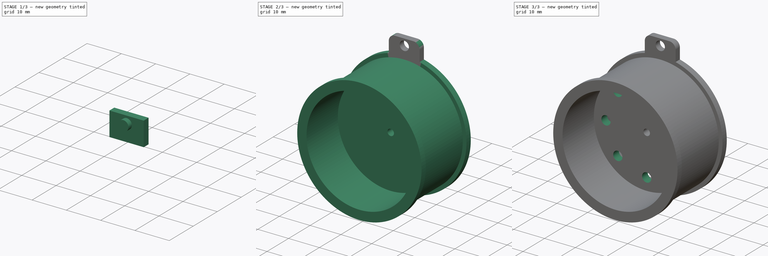
[diagram: build sequence overview — one tinted view per stage of 3, left to right]
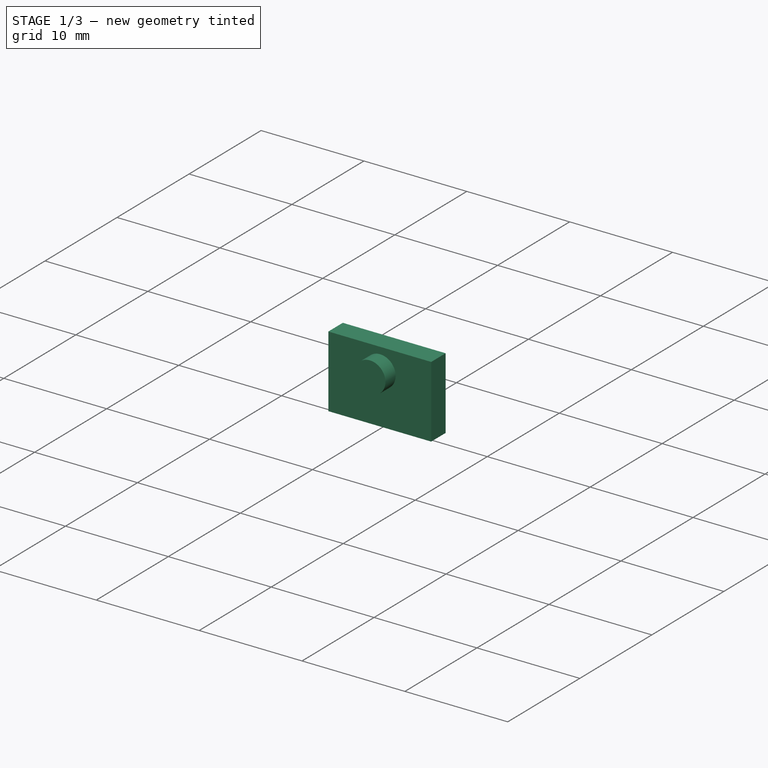
[diagram: stage 1 of 3 — iso view after this stage's code; geometry added in this stage tinted green]
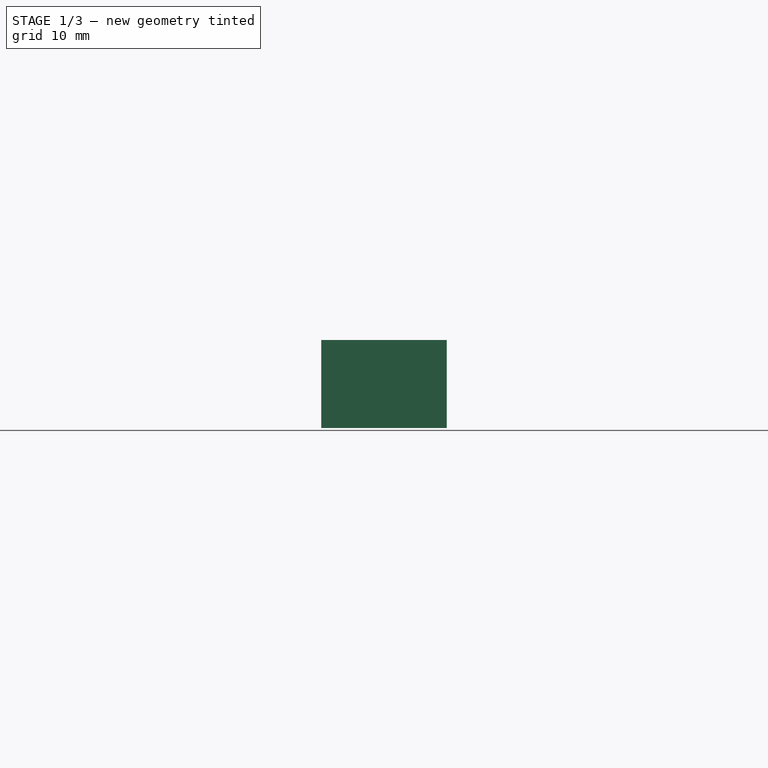
[diagram: stage 1 of 3 — front view after this stage's code; geometry added in this stage tinted green]
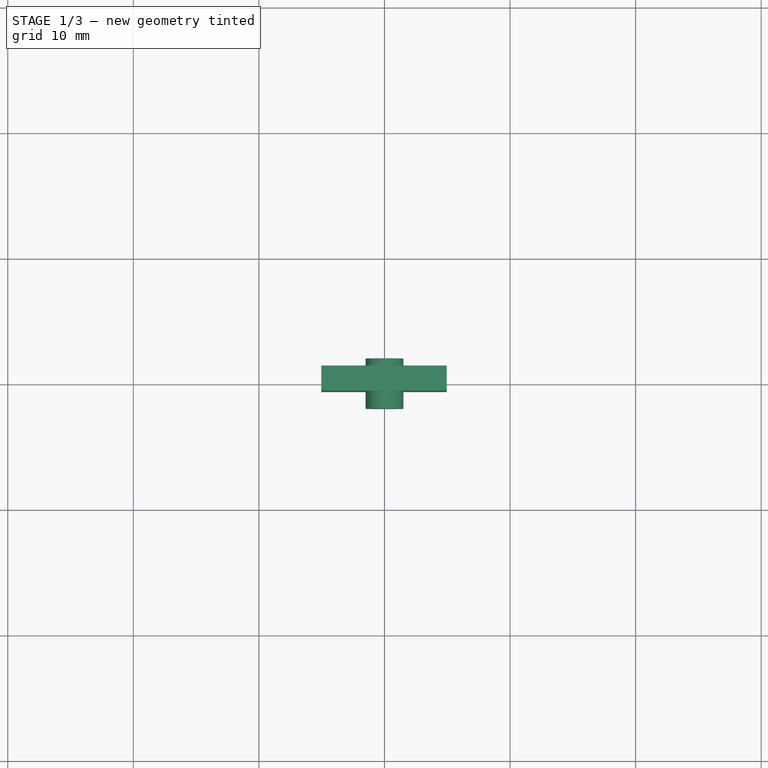
[diagram: stage 1 of 3 — top view after this stage's code; geometry added in this stage tinted green]
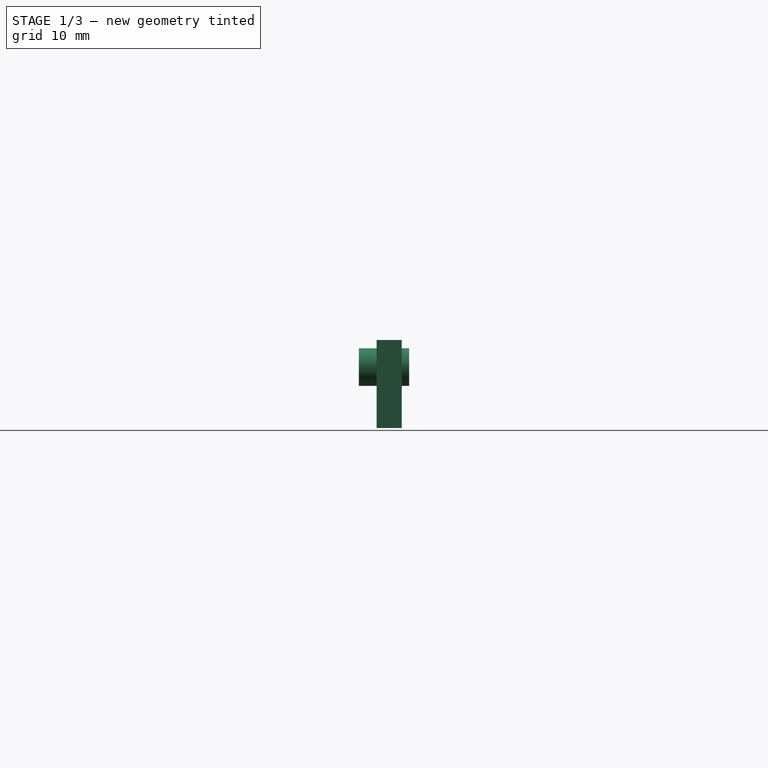
[diagram: stage 1 of 3 — right view after this stage's code; geometry added in this stage tinted green]
FCSTD DOCUMENT  (FreeCAD 0.15R4671 (Git))
Label: llavero-llanta-camion
License: All rights reserved
LicenseURL: http://es.wikipedia.org/wiki/Todos_los_derechos_reservados
objects: Sketcher::SketchObject×2, PartDesign::Revolution×1, PartDesign::Pocket×1, Part::Box×1, Part::Cylinder×1, Part::Cut×1, Part::Fillet×1, Part::MultiFuse×1, Part::Feature×1
note: 12 computed .brp shape members not serialized (recipe doc carries the construction recipe); baked Part::Feature solids carry a one-line shape summary decoded from their .brp

FEATURE [Part::Box] Box  label="Cubo"
  Height = 7
  Length = 10
  Placement = pos=(-5.0381,9.4144,18.151) rot=(0,0,1;0rad)
  Width = 2
FEATURE [Part::Cylinder] Cylinder  label="Cilindro"
  Angle = 360
  Height = 4
  Placement = pos=(0,12,23) rot=(1,0,0;1.5708rad)
  Radius = 1.5
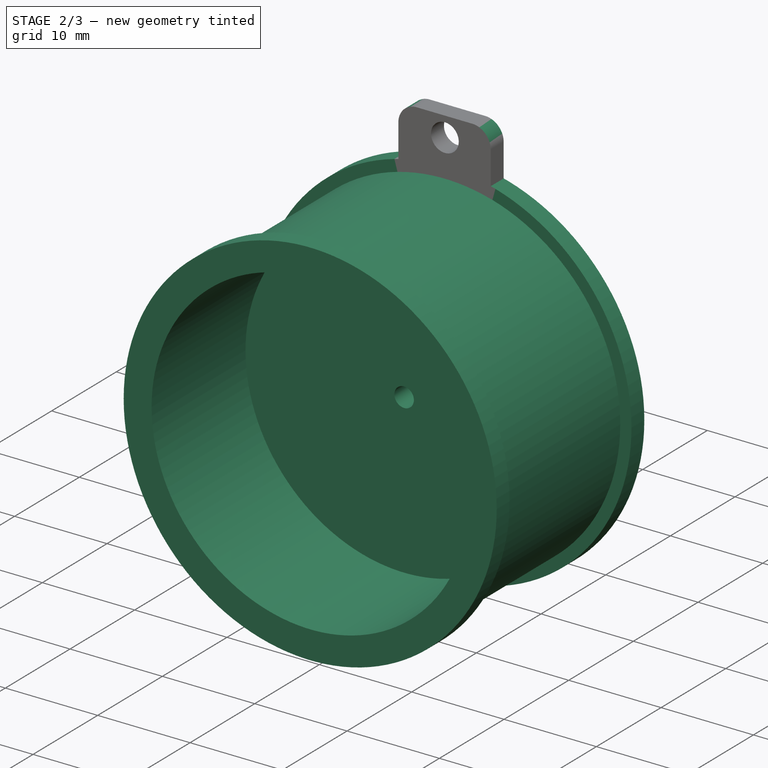
[diagram: stage 2 of 3 — iso view after this stage's code; geometry added in this stage tinted green]
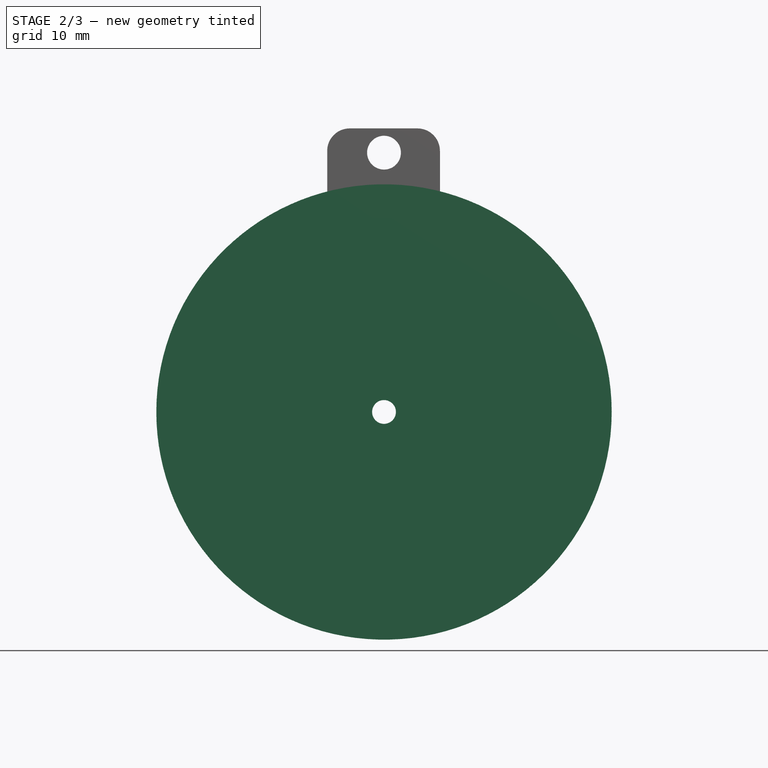
[diagram: stage 2 of 3 — front view after this stage's code; geometry added in this stage tinted green]
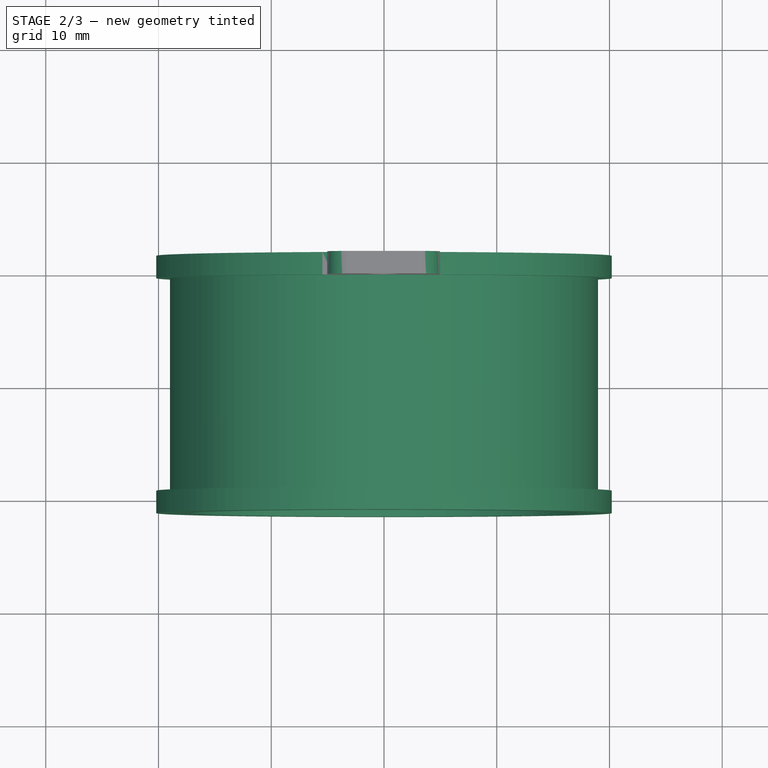
[diagram: stage 2 of 3 — top view after this stage's code; geometry added in this stage tinted green]
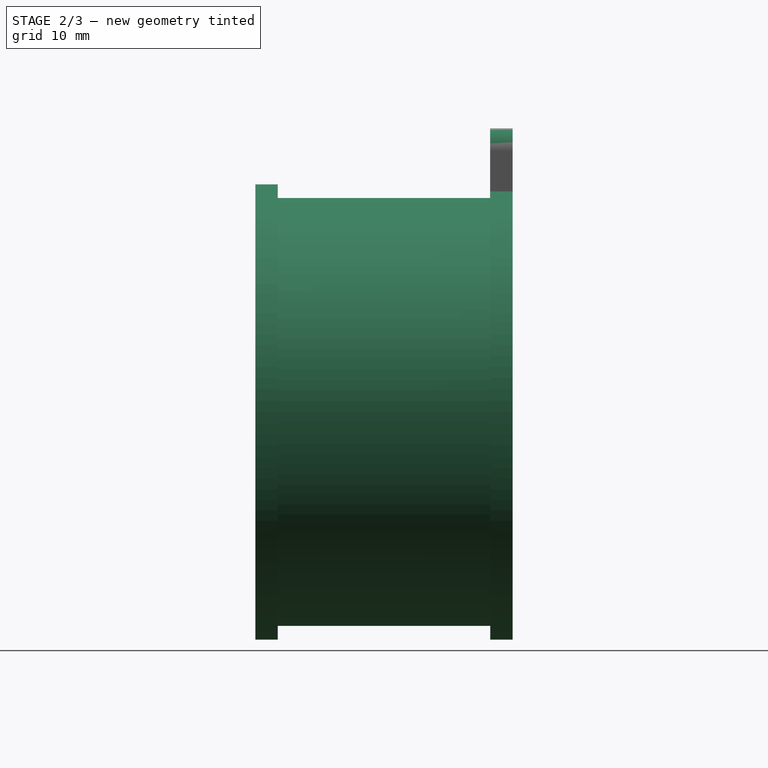
[diagram: stage 2 of 3 — right view after this stage's code; geometry added in this stage tinted green]
FEATURE [Sketcher::SketchObject] Sketch
  sketch-geometry (19):
    g0: LineSegment StartX=20.1964 StartY=11.4144 StartZ=0 EndX=20.1964 EndY=9.42341 EndZ=0
    g1: LineSegment StartX=20.1964 StartY=9.42341 StartZ=0 EndX=18.9802 EndY=9.42341 EndZ=0
    g2: LineSegment StartX=18.9802 StartY=9.42341 StartZ=0 EndX=18.9802 EndY=-9.42341 EndZ=0
    g3: LineSegment StartX=18.9802 StartY=-9.42341 StartZ=0 EndX=20.1964 EndY=-9.42341 EndZ=0
    g4: LineSegment StartX=20.1964 StartY=-9.42341 StartZ=0 EndX=20.1964 EndY=-11.4144 EndZ=0
    g5: LineSegment StartX=20.1964 StartY=-11.4144 StartZ=0 EndX=17.1738 EndY=-11.4144 EndZ=0
    g6: LineSegment StartX=17.1738 StartY=-11.4144 StartZ=0 EndX=17.1738 EndY=3.1115 EndZ=0
    g7: LineSegment StartX=17.1738 StartY=3.1115 StartZ=0 EndX=1.05538 EndY=3.1115 EndZ=0
    g8: LineSegment StartX=1.05538 StartY=3.1115 StartZ=0 EndX=1.05538 EndY=6.98738 EndZ=0
    g9: LineSegment StartX=1.05538 StartY=6.98738 StartZ=0 EndX=1.92881 EndY=6.55067 EndZ=0
    g10: LineSegment StartX=1.92881 StartY=6.55067 StartZ=0 EndX=3.89401 EndY=7.64245 EndZ=0
    g11: LineSegment StartX=3.89401 StartY=7.64245 StartZ=0 EndX=6.44149 EndY=7.64245 EndZ=0
    g12: LineSegment StartX=6.44149 StartY=7.64245 StartZ=0 EndX=9.28012 EndY=5.67725 EndZ=0
    g13: LineSegment StartX=9.28012 StartY=5.67725 StartZ=0 EndX=10.2263 EndY=6.76903 EndZ=0
    g14: LineSegment StartX=10.2263 StartY=6.76903 StartZ=0 EndX=10.8903 EndY=5.75003 EndZ=0
    g15: LineSegment StartX=10.8903 StartY=5.75003 StartZ=0 EndX=15.9036 EndY=5.75003 EndZ=0
    g16: LineSegment StartX=15.9036 StartY=5.75003 StartZ=0 EndX=16.7042 EndY=6.62346 EndZ=0
    g17: LineSegment StartX=16.7042 StartY=6.62346 StartZ=0 EndX=18.0912 EndY=11.4144 EndZ=0
    g18: LineSegment StartX=18.0912 StartY=11.4144 StartZ=0 EndX=20.1964 EndY=11.4144 EndZ=0
  constraints (33):
    c: Vertical(g0)
    c: Coincident(g0,g1)
    c: Coincident(g1,g2)
    c: Vertical(g2)
    c: Coincident(g2,g3)
    c: Horizontal(g3)
    c: Coincident(g3,g4)
    c: Vertical(g4)
    c: Coincident(g4,g5)
    c: Horizontal(g5)
    c: Coincident(g5,g6)
    c: Vertical(g6)
    c: Coincident(g6,g7)
    c: Horizontal(g7)
    c: Coincident(g7,g8)
    c: Vertical(g8)
    c: Coincident(g8,g9)
    c: Coincident(g9,g10)
    c: Coincident(g10,g11)
    c: Horizontal(g11)
    c: Coincident(g11,g12)
    c: Coincident(g12,g13)
    c: Coincident(g13,g14)
    c: Coincident(g14,g15)
    c: Coincident(g15,g16)
    c: Coincident(g16,g17)
    c: Coincident(g17,g18)
    c: Coincident(g18,g0)
    c: Horizontal(g18)
    c: Horizontal(g15)
    c: Symmetric(g0,g4,g-1)
    c: Symmetric(g3,g0,g-1)
    c: Symmetric(g2,g1,g-1)
FEATURE [PartDesign::Revolution] Revolution
  Angle = 360
  Axis = (0,1,0)
  Base = (0,0,0)
  ReferenceAxis = -> Sketch [V_Axis]
  Reversed = true
  Sketch = -> Sketch
FEATURE [Part::Cut] Cut
  Base = -> Box
  Tool = -> Cylinder
FEATURE [Part::Fillet] Fillet
  Base = -> Cut
  Edges = 2 edges r=2: [Edge2,Edge10]
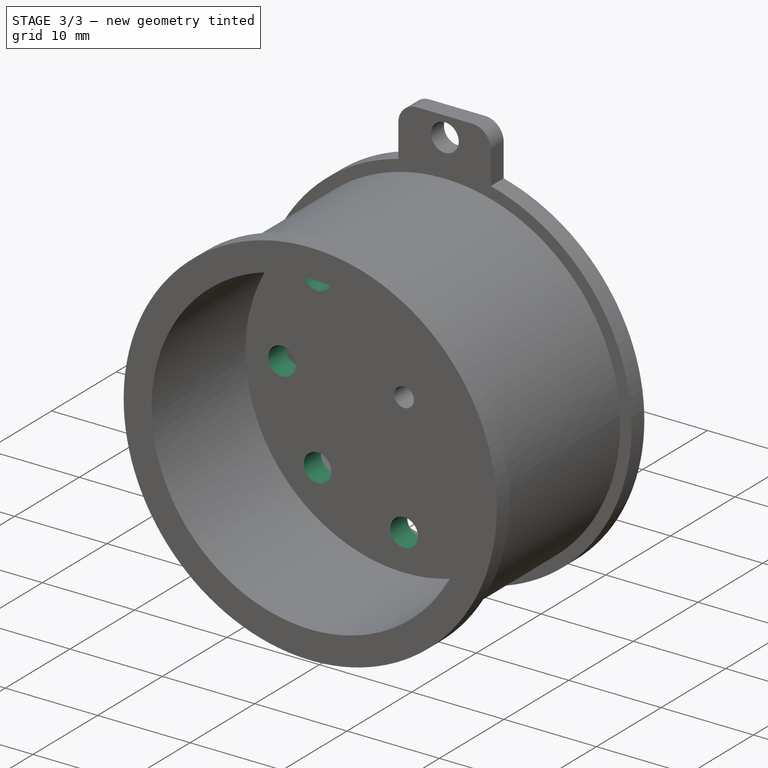
[diagram: stage 3 of 3 — iso view after this stage's code; geometry added in this stage tinted green]
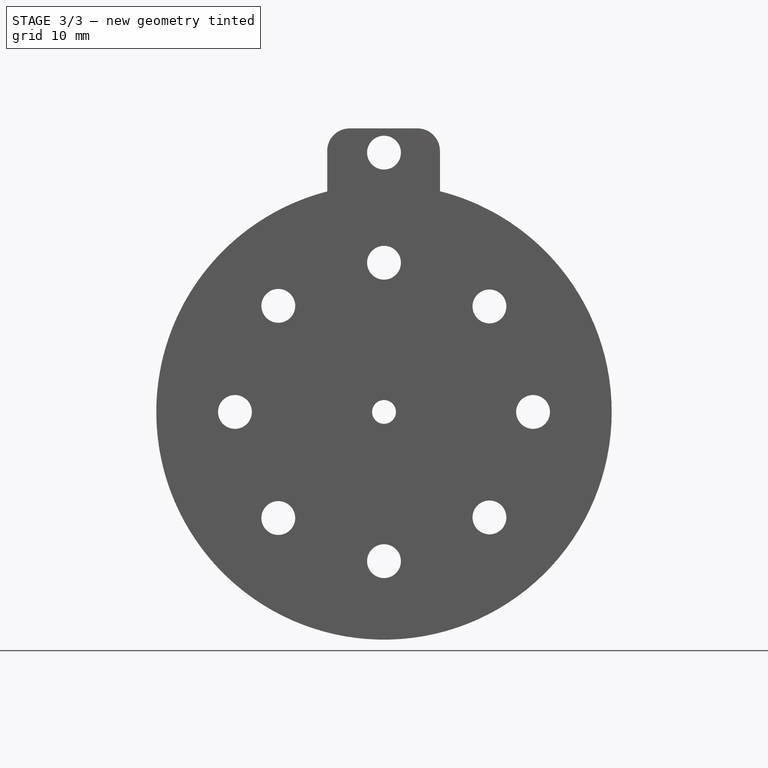
[diagram: stage 3 of 3 — front view after this stage's code; geometry added in this stage tinted green]
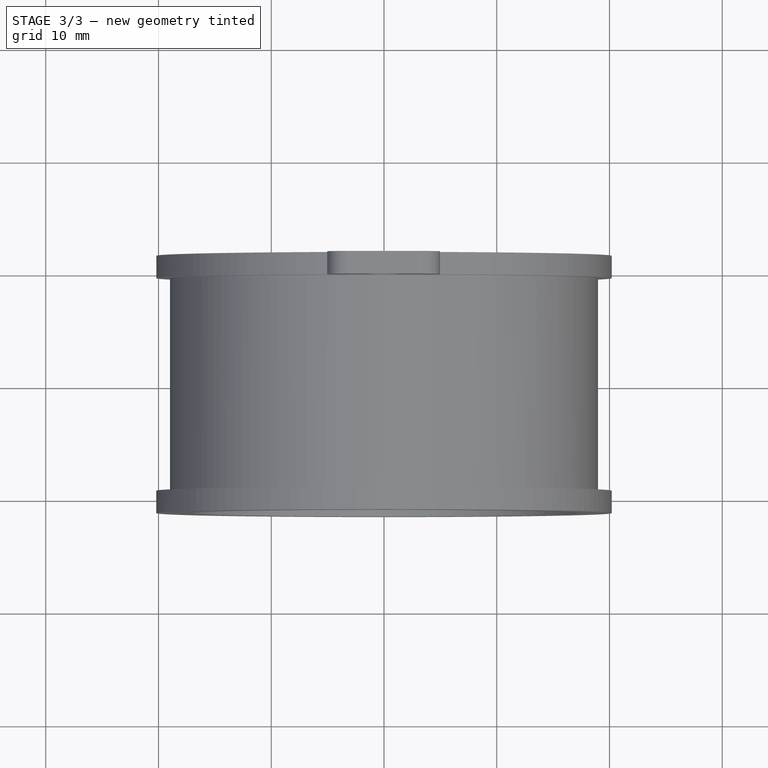
[diagram: stage 3 of 3 — top view after this stage's code; geometry added in this stage tinted green]
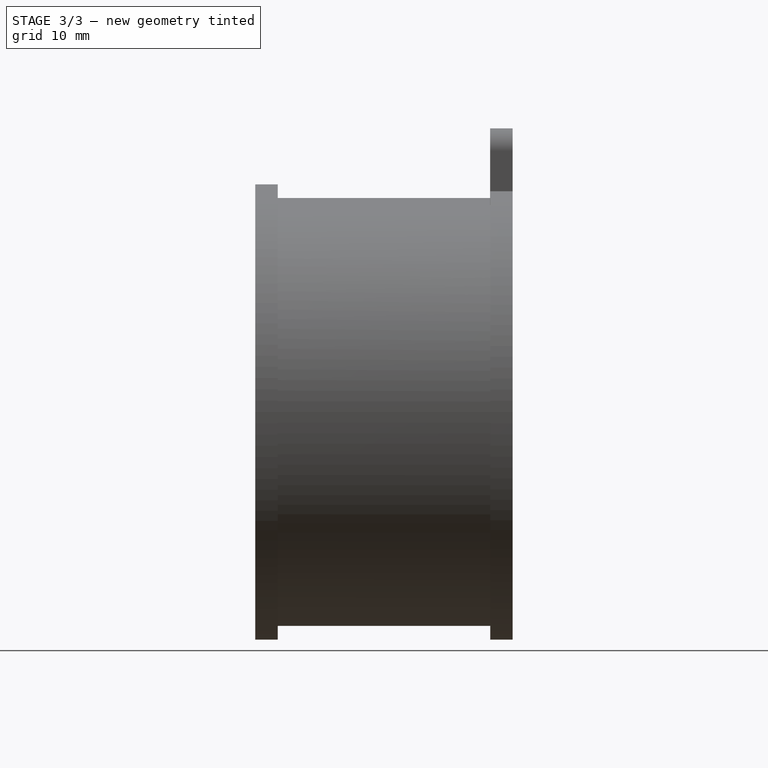
[diagram: stage 3 of 3 — right view after this stage's code; geometry added in this stage tinted green]
FEATURE [Sketcher::SketchObject] Sketch001
  ExternalGeometry = -> [Revolution]
  Placement = pos=(0,5.75003,0) rot=(0,0.707107,0.707107;3.14159rad)
  Support = -> Revolution [Face16]
  sketch-geometry (16):
    g0: Circle CenterX=0 CenterY=13.235 CenterZ=0 NormalX=0 NormalY=0 NormalZ=1 Radius=1.5
    g1: Circle CenterX=-9.3529 CenterY=9.35718 CenterZ=0 NormalX=0 NormalY=0 NormalZ=1 Radius=1.5
    g2: Circle CenterX=-13.2204 CenterY=0 CenterZ=0 NormalX=0 NormalY=0 NormalZ=1 Radius=1.5
    g3: Circle CenterX=0 CenterY=-13.235 CenterZ=0 NormalX=0 NormalY=0 NormalZ=1 Radius=1.5
    g4: Circle CenterX=-9.3529 CenterY=-9.35718 CenterZ=0 NormalX=0 NormalY=0 NormalZ=1 Radius=1.5
    g5: Circle CenterX=9.37423 CenterY=-9.40903 CenterZ=0 NormalX=0 NormalY=0 NormalZ=1 Radius=1.5
    g6: Circle CenterX=13.2204 CenterY=0 CenterZ=0 NormalX=0 NormalY=0 NormalZ=1 Radius=1.5
    g7: Circle CenterX=9.37423 CenterY=9.40903 CenterZ=0 NormalX=0 NormalY=0 NormalZ=1 Radius=1.5
    g8: LineSegment [constr] StartX=13.1138 StartY=0 StartZ=0 EndX=9.37423 EndY=9.40903 EndZ=0
    g9: LineSegment [constr] StartX=9.37423 StartY=9.40903 StartZ=0 EndX=0 EndY=13.235 EndZ=0
    g10: LineSegment [constr] StartX=0 StartY=13.235 StartZ=0 EndX=-9.3529 EndY=9.35718 EndZ=0
    g11: LineSegment [constr] StartX=-9.3529 StartY=9.35718 StartZ=0 EndX=-13.2204 EndY=0 EndZ=0
    g12: LineSegment [constr] StartX=-13.2204 StartY=0 StartZ=0 EndX=-9.3529 EndY=-9.35718 EndZ=0
    g13: LineSegment [constr] StartX=-9.3529 StartY=-9.35718 StartZ=0 EndX=0 EndY=-13.235 EndZ=0
    g14: LineSegment [constr] StartX=0 StartY=-13.235 StartZ=0 EndX=9.37423 EndY=-9.40903 EndZ=0
    g15: LineSegment [constr] StartX=9.37423 StartY=-9.40903 StartZ=0 EndX=13.1138 EndY=0 EndZ=0
  constraints (31):
    c: PointOnObject(g0,g-2)
    c: Symmetric(g0,g3,g-1)
    c: Symmetric(g7,g5,g-1)
    c: Symmetric(g1,g4,g-1)
    c: Symmetric(g2,g6,g-2)
    c: Radius(g0) = 1.5
    c: Equal(g0,g1)
    c: Equal(g0,g2)
    c: Equal(g0,g4)
    c: Equal(g0,g3)
    c: Equal(g0,g5)
    c: Equal(g0,g6)
    c: Equal(g0,g7)
    c: PointOnObject(g2,g-1)
    c: Coincident(g8,g9)
    c: Coincident(g9,g10)
    c: Coincident(g10,g11)
    c: Coincident(g11,g12)
    c: Coincident(g12,g13)
    c: Coincident(g13,g14)
    c: Coincident(g14,g15)
    c: Coincident(g15,g8)
    c: Equal(g8, g9-g15) x7
    c: Coincident(g13,g-1)
    c: Coincident(g8,g7)
    c: Coincident(g0,g9)
    c: Coincident(g1,g10)
    c: Coincident(g2,g11)
    c: Coincident(g4,g12)
    c: Coincident(g13,g3)
    c: Coincident(g5,g14)
FEATURE [PartDesign::Pocket] Pocket
  Length = 5
  Sketch = -> Sketch001
  Type = 0
FEATURE [Part::MultiFuse] Fusion
  Shapes = -> [Pocket,Fillet]
FEATURE [Part::Feature] Fusion001
  shape: bbox 40.39 x 22.83 x 45.35 mm, 34 faces (baked)
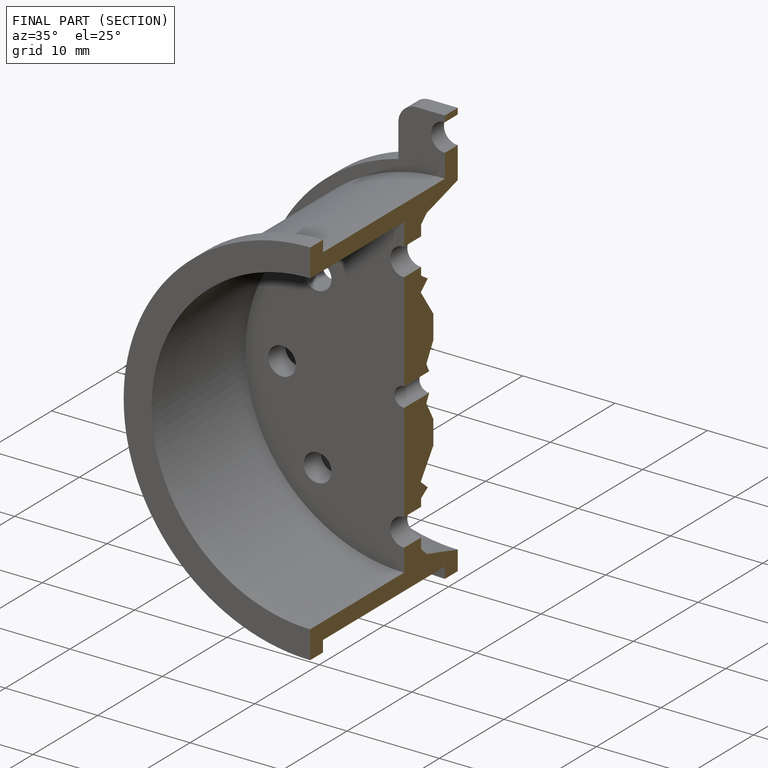
[diagram: finished part — half-section view (interior)]
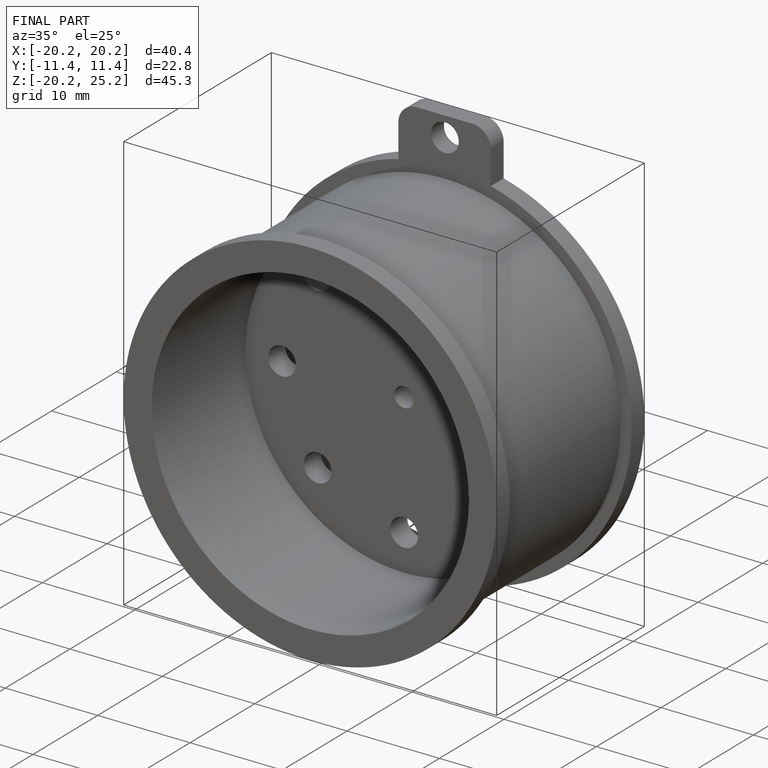
[diagram: finished part — iso view with bounding-box wireframe]
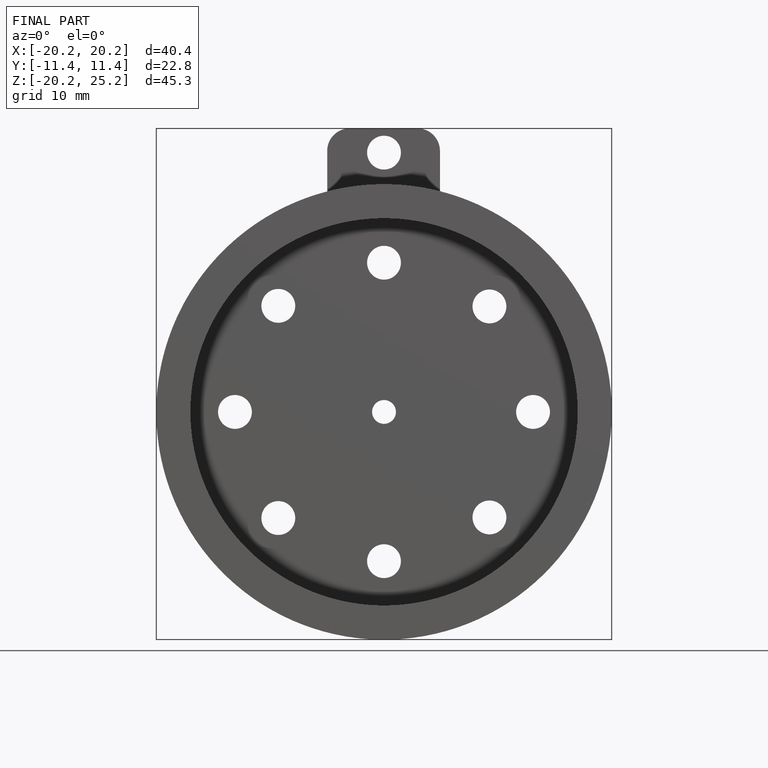
[diagram: finished part — front view with bounding-box wireframe]
